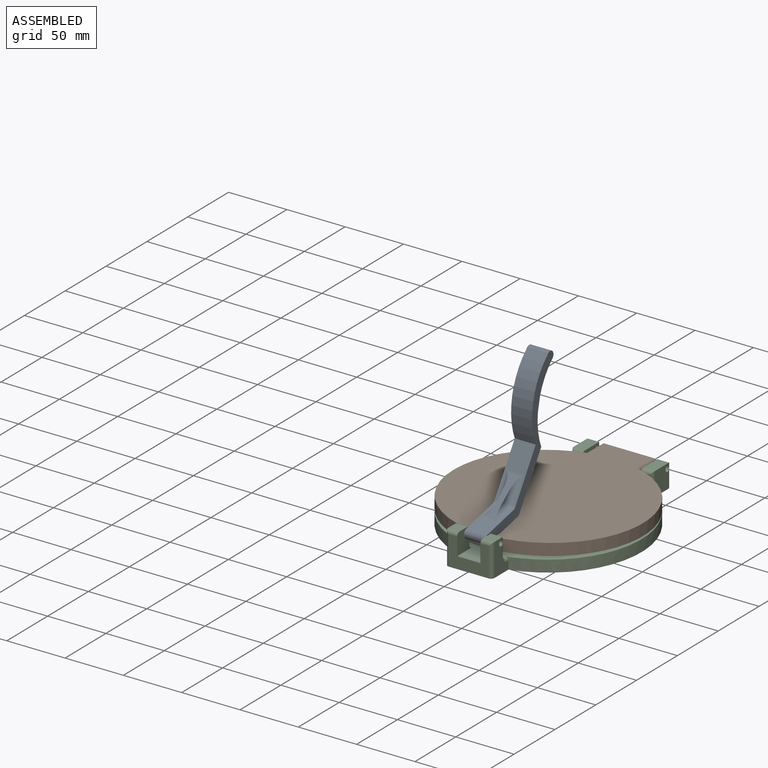
[diagram: assembled view]
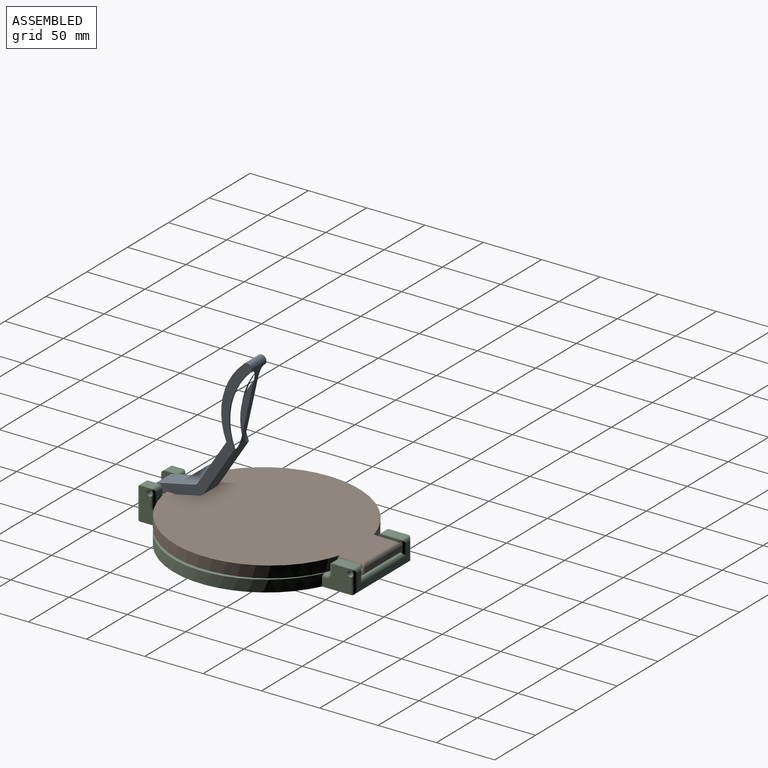
[diagram: assembled view, second angle]
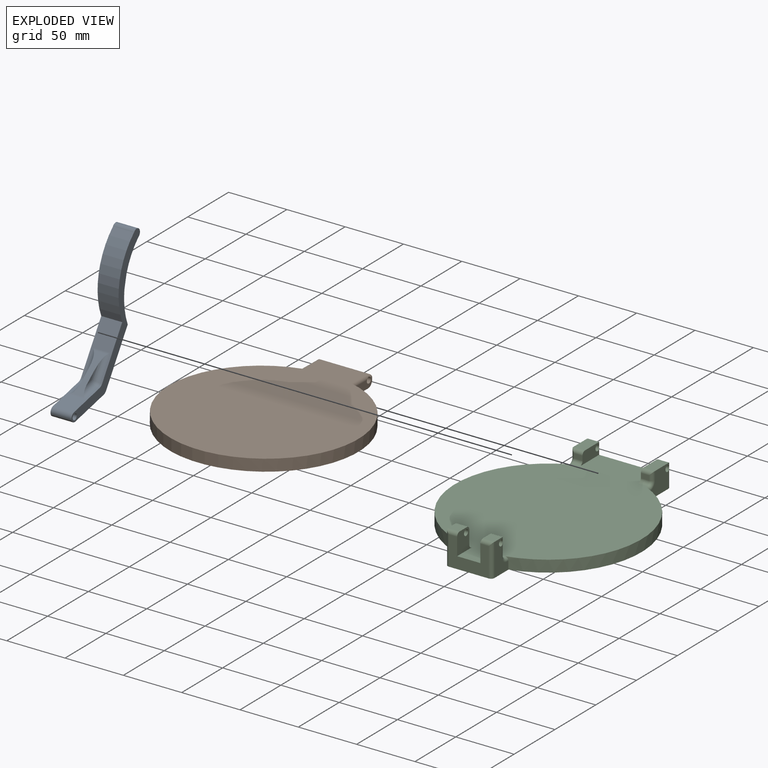
[diagram: exploded view]
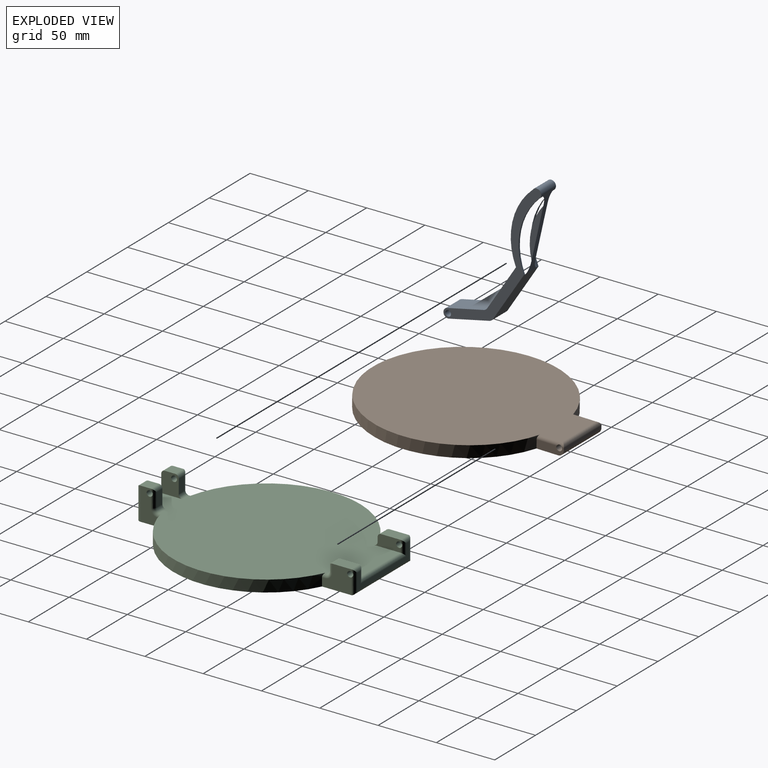
[diagram: exploded view, second angle]
ASSEMBLY  parts=3 mates=2
PART A: 31 faces, bbox 20.1x109.2x102.3 mm
  f0: cylinder r=56.21mm len=58.44mm, axis (-1,0,0), area 102mm2, adj f1,f7,f11,f27
  f1: cylinder r=4mm len=18mm, axis (-1,0,0), area 236mm2, adj f0,f2,f8,f10,f11,f12,f26,f27
  f2: cylinder r=56.21mm len=59.46mm, axis (-1,0,0), area 1260mm2, adj f1,f3,f10,f11
  f3: plane 32.19x32.19mm, normal (0,-0.71,0.71), area 481.3mm2, adj f2,f10,f11,f19,f21,f22,f24,f29
  f4: plane 32.02x18mm, normal (0,0,1), area 334.1mm2, adj f5,f10,f11,f18,f20,f22,f24,f28
  f5: cylinder r=4mm len=18mm, axis (-1,0,0), area 226.2mm2, adj f4,f6,f10,f11
  f6: plane 35.33x18mm, normal (0,0,-1), area 635.9mm2, adj f5,f10,f11,f30
  f7: plane 34.54x34.54mm, normal (0,0.71,-0.71), area 879.1mm2, adj f0,f8,f10,f11,f12,f30
  f8: cylinder r=56.21mm len=58.44mm, axis (-1,0,0), area 102mm2, adj f1,f7,f10,f26
  f9: cylinder r=2.5mm len=18mm, axis (-1,0,0), area 282.7mm2, adj f10,f11
  f10: plane 106.2x102.29mm, normal (1,0,0), area 1203.4mm2, adj f1,f2,f3,f4,f5,f6,f7,f8
  f11: plane 106.2x102.29mm, normal (-1,0,0), area 1203.4mm2, adj f0,f1,f2,f3,f4,f5,f6,f7
  f12: plane 59.46x27.63mm, normal (0,0.91,-0.42), area 366.3mm2, adj f1,f7,f13,f14,f26,f27
  f13: plane 42.05x19.57mm, normal (1,0,0), area 173.5mm2, adj f12,f26
  f14: plane 42.05x19.57mm, normal (-1,0,0), area 173.5mm2, adj f12,f27
  f15: plane 32.09x15.94mm, normal (0,-0.44,0.9), area 222.3mm2, adj f16,f17,f18,f19,f20,f21,f28,f29
  f16: plane 9.76x4.85mm, normal (1,0,0), area 11.9mm2, adj f15,f18,f19
  f17: plane 9.76x4.85mm, normal (-1,0,0), area 11.9mm2, adj f15,f20,f21
  f18: cylinder r=5mm len=16.15mm, axis (0,-1,0), area 89.8mm2, adj f4,f15,f16,f25,f28
  f19: cylinder r=5mm len=19.48mm, axis (0,-0.71,-0.71), area 128.7mm2, adj f3,f15,f16,f25,f29
  f20: cylinder r=5mm len=16.15mm, axis (0,1,0), area 89.8mm2, adj f4,f15,f17,f23,f28
  f21: cylinder r=5mm len=19.48mm, axis (0,0.71,0.71), area 128.7mm2, adj f3,f15,f17,f23,f29
  f22: cylinder r=5mm len=3.54mm, axis (1,0,0), area 5.9mm2, adj f3,f4,f11,f23
  f23: sphere r=5mm, area 19.6mm2, adj f20,f21,f22
  f24: cylinder r=5mm len=3.54mm, axis (1,0,0), area 5.9mm2, adj f3,f4,f10,f25
  f25: sphere r=5mm, area 19.6mm2, adj f18,f19,f24
  f26: torus R=51.21mm, axis (1,0,0), area 487.6mm2, adj f1,f8,f12,f13
  f27: torus R=51.21mm, axis (1,0,0), area 487.6mm2, adj f0,f1,f12,f14
  f28: cylinder r=5mm len=15mm, axis (1,0,0), area 29.5mm2, adj f4,f15,f18,f20
  f29: cylinder r=5mm len=15mm, axis (1,0,0), area 21.7mm2, adj f3,f15,f19,f21
  f30: cylinder r=5mm len=18mm, axis (-1,0,0), area 70.7mm2, adj f6,f7,f10,f11
PART B: 11 faces, bbox 160x180x10 mm
  f0: plane 23.38x7mm, normal (1,0,0), area 143.6mm2, adj f1,f3,f5,f6,f7,f8
  f1: plane 46x2mm, normal (0,1,0), area 92mm2, adj f0,f2,f7,f9
  f2: plane 23.38x7mm, normal (-1,0,0), area 143.6mm2, adj f1,f3,f5,f6,f7,f10
  f3: cylinder r=80mm len=160mm, axis (0,0,-1), area 4564mm2, adj f0,f2,f4,f5,f8,f10
  f4: plane 177x160mm, normal (0,0,1), area 20819.8mm2, adj f3,f8,f9,f10
  f5: plane 175x160mm, normal (0,0,-1), area 20847.5mm2, adj f0,f2,f3,f7
  f6: cylinder r=2.5mm len=46mm, axis (-1,0,0), area 720.2mm2, adj f0,f2,f8,f10
  f7: cylinder r=5mm len=46mm, axis (-1,0,0), area 361.3mm2, adj f0,f1,f2,f5
  f8: cylinder r=3mm len=23.38mm, axis (0,-1,0), area 98.4mm2, adj f0,f3,f4,f6,f9
  f9: cylinder r=3mm len=46mm, axis (1,0,0), area 206.5mm2, adj f1,f4,f8,f10
  f10: cylinder r=3mm len=23.38mm, axis (0,1,0), area 98.4mm2, adj f2,f3,f4,f6,f9
PART C: 58 faces, bbox 160x197.5x28 mm
  f0: plane 12x7mm, normal (0,1,0), area 84mm2, adj f17,f44,f45,f46
  f1: plane 34x25mm, normal (0,-1,0), area 550mm2, adj f7,f13,f16,f17,f54,f55,f56,f57
  f2: plane 7x4mm, normal (0,-1,0), area 28mm2, adj f5,f27,f28,f29
  f3: plane 25.06x20mm, normal (1,0,0), area 382.1mm2, adj f12,f13,f18,f19,f24,f25,f26,f34
  f4: plane 64x14mm, normal (0,1,0), area 336mm2, adj f32,f33,f34,f35,f36,f37,f38,f39
  f5: plane 22.43x10mm, normal (1,0,0), area 179.6mm2, adj f2,f7,f20,f21,f27,f29,f37
  f6: plane 22.43x10mm, normal (-1,0,0), area 179.6mm2, adj f7,f14,f18,f19,f22,f23,f33
  f7: plane 194.46x160mm, normal (0,0,1), area 21382.4mm2, adj f1,f5,f6,f9,f12,f16,f17,f23
  f8: plane 25.06x20mm, normal (-1,0,0), area 382.1mm2, adj f9,f13,f20,f21,f28,f30,f31,f38
  f9: cylinder r=80mm len=151.49mm, axis (0,0,-1), area 1953mm2, adj f7,f8,f10,f13,f31,f53
  f10: plane 28x17mm, normal (-1,0,0), area 301mm2, adj f9,f13,f42,f43,f51,f52,f53,f54
  f11: plane 28x17mm, normal (1,0,0), area 301mm2, adj f12,f13,f40,f41,f45,f47,f48,f56
  f12: cylinder r=80mm len=151.49mm, axis (0,0,-1), area 1953mm2, adj f3,f7,f11,f13,f26,f48
  f13: plane 194.46x160mm, normal (0,0,-1), area 22208.5mm2, adj f1,f3,f8,f9,f10,f11,f12,f36
  f14: plane 7x4mm, normal (0,-1,0), area 28mm2, adj f6,f22,f23,f24
  f15: plane 12x7mm, normal (0,1,0), area 84mm2, adj f16,f49,f50,f51
  f16: plane 18x18mm, normal (1,0,0), area 248.4mm2, adj f1,f7,f15,f42,f43,f49,f50,f55
  f17: plane 18x18mm, normal (-1,0,0), area 248.4mm2, adj f0,f1,f7,f40,f41,f44,f46,f57
  f18: plane 16.43x10mm, normal (0,0,1), area 164.3mm2, adj f3,f6,f22,f32
  f19: cylinder r=2.5mm len=10mm, axis (-1,0,0), area 154.7mm2, adj f3,f6,f33,f34
  f20: plane 16.43x10mm, normal (0,0,1), area 164.3mm2, adj f5,f8,f27,f39
  f21: cylinder r=2.5mm len=10mm, axis (-1,0,0), area 154.7mm2, adj f5,f8,f37,f38
  f22: cylinder r=3mm len=10mm, axis (1,0,0), area 42mm2, adj f6,f14,f18,f24
  f23: cylinder r=3mm len=7mm, axis (1,0,0), area 33mm2, adj f6,f7,f14,f25
  f24: cylinder r=3mm len=7mm, axis (0,0,1), area 27.8mm2, adj f3,f14,f22,f25
  f25: torus R=6mm, axis (1,0,0), area 30.3mm2, adj f3,f23,f24,f26
  f26: cylinder r=3mm len=3mm, axis (0,-1,0), area 10mm2, adj f3,f7,f12,f25
  f27: cylinder r=3mm len=10mm, axis (-1,0,0), area 42mm2, adj f2,f5,f20,f28
  f28: cylinder r=3mm len=7mm, axis (0,0,1), area 27.8mm2, adj f2,f8,f27,f30
  f29: cylinder r=3mm len=7mm, axis (1,0,0), area 33mm2, adj f2,f5,f7,f30
  f30: torus R=6mm, axis (1,0,0), area 30.3mm2, adj f8,f28,f29,f31
  f31: cylinder r=3mm len=3mm, axis (0,1,0), area 10mm2, adj f7,f8,f9,f30
  f32: cylinder r=3mm len=10mm, axis (1,0,0), area 36.8mm2, adj f4,f18,f33,f34
  f33: cylinder r=3mm len=13mm, axis (0,0,-1), area 42mm2, adj f4,f6,f19,f32,f35
  f34: cylinder r=3mm len=20mm, axis (0,0,1), area 78.9mm2, adj f3,f4,f19,f32,f36
  f35: cylinder r=3mm len=56mm, axis (1,0,0), area 245.9mm2, adj f4,f7,f33,f37
  f36: cylinder r=3mm len=70mm, axis (-1,0,0), area 319.6mm2, adj f4,f13,f34,f38
  f37: cylinder r=3mm len=13mm, axis (0,0,1), area 42mm2, adj f4,f5,f21,f35,f39
  f38: cylinder r=3mm len=20mm, axis (0,0,-1), area 78.9mm2, adj f4,f8,f21,f36,f39
  f39: cylinder r=3mm len=10mm, axis (1,0,0), area 36.8mm2, adj f4,f20,f37,f38
  f40: plane 10x9mm, normal (0,0,1), area 90mm2, adj f11,f17,f44,f57
  f41: cylinder r=2.5mm len=10mm, axis (-1,0,0), area 155.9mm2, adj f11,f17,f45
  f42: plane 10x9mm, normal (0,0,1), area 90mm2, adj f10,f16,f49,f55
  f43: cylinder r=2.5mm len=10mm, axis (-1,0,0), area 155.9mm2, adj f10,f16,f51
  f44: cylinder r=3mm len=10mm, axis (-1,0,0), area 42mm2, adj f0,f17,f40,f45
  f45: cylinder r=3mm len=15mm, axis (0,0,-1), area 60.4mm2, adj f0,f11,f41,f44,f47
  f46: cylinder r=3mm len=7mm, axis (-1,0,0), area 33mm2, adj f0,f7,f17,f47
  f47: torus R=6mm, axis (-1,0,0), area 30.3mm2, adj f11,f45,f46,f48
  f48: cylinder r=3mm len=3mm, axis (0,-1,0), area 8.2mm2, adj f7,f11,f12,f47
  f49: cylinder r=3mm len=10mm, axis (1,0,0), area 42mm2, adj f15,f16,f42,f51
  f50: cylinder r=3mm len=7mm, axis (-1,0,0), area 33mm2, adj f7,f15,f16,f52
  f51: cylinder r=3mm len=15mm, axis (0,0,-1), area 60.4mm2, adj f10,f15,f43,f49,f52
  f52: torus R=6mm, axis (-1,0,0), area 30.3mm2, adj f10,f50,f51,f53
  f53: cylinder r=3mm len=3mm, axis (0,1,0), area 8.2mm2, adj f7,f9,f10,f52
  f54: cylinder r=3mm len=28mm, axis (0,0,-1), area 126.8mm2, adj f1,f10,f13,f55
  f55: cylinder r=3mm len=10mm, axis (1,0,0), area 42mm2, adj f1,f16,f42,f54
  f56: cylinder r=3mm len=28mm, axis (0,0,1), area 126.8mm2, adj f1,f11,f13,f57
  f57: cylinder r=3mm len=10mm, axis (1,0,0), area 42mm2, adj f1,f17,f40,f56
PLACE A rot(axis=(1,0,0),12.3deg) t=(156.17,32.33,-41.68)mm
PLACE B rot(axis=(-1,0,0),1.1deg) t=(156.17,118.7,-53.92)mm
PLACE C t=(156.17,118.79,-65.68)mm fixed
MATE revolute A.f9 <-> C.f41  axis (-1,0,0) through (147.17,32.33,-41.68)mm
MATE revolute C.f19 <-> B.f6  axis (-1,0,0) through (131.17,214.79,-49.68)mm
